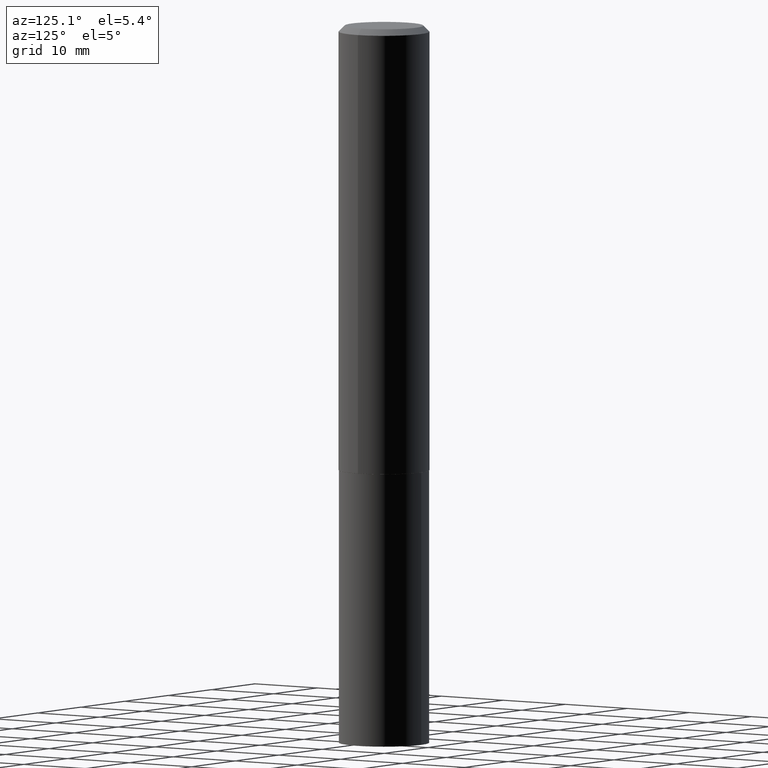
[diagram: clean part render]
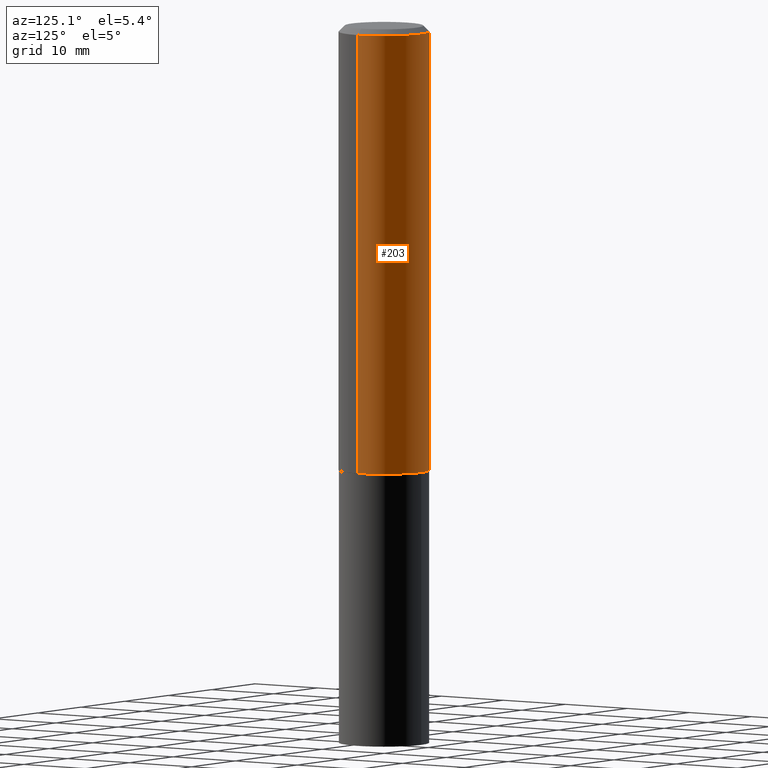
[diagram: same view with one face highlighted and labeled with its STEP entity id]
A machine part, auxiliary view. The second image highlights one B-rep face of the part: STEP entity #203.
In plain terms, the highlighted cylindrical surface (partial cylindrical patch) has radius 5.9995 mm, axis along (-0, 0, 1).
Its self-contained STEP definition (entity closure, byte-faithful):
#4 = CIRCLE ( 'NONE', #275, 0.2362000000000003264 ) ;
#14 = VERTEX_POINT ( 'NONE', #157 ) ;
#36 = DIRECTION ( 'NONE',  ( -2.445468806185136877E-29, 3.491481338843145188E-15, 1.000000000000000000 ) ) ;
#39 = EDGE_LOOP ( 'NONE', ( #173, #125, #242, #137 ) ) ;
#48 = DIRECTION ( 'NONE',  ( -2.445468806185136597E-29, 3.491481338843145583E-15, 1.000000000000000000 ) ) ;
#56 = CARTESIAN_POINT ( 'NONE',  ( 0.2362000000000001598, -1.649375784469497314E-15, 1.151752954443000929E-29 ) ) ;
#72 = EDGE_CURVE ( 'NONE', #353, #325, #79, .T. ) ;
#78 = CARTESIAN_POINT ( 'NONE',  ( -0.2362000000000003264, -6.417395838510242955E-15, -2.318700000000000205 ) ) ;
#79 = LINE ( 'NONE', #299, #306 ) ;
#81 = EDGE_CURVE ( 'NONE', #14, #353, #4, .T. ) ;
#88 = CARTESIAN_POINT ( 'NONE',  ( 0.000000000000000000, 0.000000000000000000, 0.000000000000000000 ) ) ;
#92 = LINE ( 'NONE', #56, #351 ) ;
#104 = CARTESIAN_POINT ( 'NONE',  ( -0.2361999999999999933, -2.424101344241866648E-15, -0.03125000000000020817 ) ) ;
#109 = CARTESIAN_POINT ( 'NONE',  ( 5.670308520901476204E-29, -8.095697780375601716E-15, -2.318700000000000205 ) ) ;
#114 = DIRECTION ( 'NONE',  ( -2.445468806185136597E-29, 3.491481338843145583E-15, 1.000000000000000000 ) ) ;
#115 = CYLINDRICAL_SURFACE ( 'NONE', #226, 0.2362000000000001598 ) ;
#125 = ORIENTED_EDGE ( 'NONE', *, *, #72, .T. ) ;
#137 = ORIENTED_EDGE ( 'NONE', *, *, #166, .F. ) ;
#157 = CARTESIAN_POINT ( 'NONE',  ( 0.2362000000000003264, -9.745073564845101397E-15, -2.318700000000000205 ) ) ;
#163 = FACE_OUTER_BOUND ( 'NONE', #39, .T. ) ;
#166 = EDGE_CURVE ( 'NONE', #14, #277, #92, .T. ) ;
#173 = ORIENTED_EDGE ( 'NONE', *, *, #81, .T. ) ;
#194 = CARTESIAN_POINT ( 'NONE',  ( 0.2361999999999999933, -1.758484576308345231E-15, -0.03125000000000020817 ) ) ;
#198 = CARTESIAN_POINT ( 'NONE',  ( 7.642090019328602662E-31, -1.091087918388490267E-16, -0.03125000000000020817 ) ) ;
#203 = ADVANCED_FACE ( 'NONE', ( #163 ), #115, .T. ) ;
#204 = AXIS2_PLACEMENT_3D ( 'NONE', #198, #318, #311 ) ;
#218 = DIRECTION ( 'NONE',  ( 1.000000000000000000, -6.982962677686270655E-15, 0.000000000000000000 ) ) ;
#226 = AXIS2_PLACEMENT_3D ( 'NONE', #88, #114, #348 ) ;
#237 = CIRCLE ( 'NONE', #204, 0.2361999999999999933 ) ;
#242 = ORIENTED_EDGE ( 'NONE', *, *, #264, .F. ) ;
#264 = EDGE_CURVE ( 'NONE', #277, #325, #237, .T. ) ;
#275 = AXIS2_PLACEMENT_3D ( 'NONE', #109, #48, #218 ) ;
#277 = VERTEX_POINT ( 'NONE', #194 ) ;
#299 = CARTESIAN_POINT ( 'NONE',  ( -0.2362000000000001598, 1.678301941865357775E-15, -1.161852468318209598E-29 ) ) ;
#303 = DIRECTION ( 'NONE',  ( -2.445468806185136877E-29, 3.491481338843145188E-15, 1.000000000000000000 ) ) ;
#306 = VECTOR ( 'NONE', #303, 39.37007874015748143 ) ;
#311 = DIRECTION ( 'NONE',  ( 1.000000000000000000, -6.982962677686266711E-15, 0.000000000000000000 ) ) ;
#318 = DIRECTION ( 'NONE',  ( -2.445468806185136597E-29, 3.491481338843145583E-15, 1.000000000000000000 ) ) ;
#325 = VERTEX_POINT ( 'NONE', #104 ) ;
#348 = DIRECTION ( 'NONE',  ( 1.000000000000000000, -6.982962677686266711E-15, 4.876176775795936353E-29 ) ) ;
#351 = VECTOR ( 'NONE', #36, 39.37007874015748143 ) ;
#353 = VERTEX_POINT ( 'NONE', #78 ) ;